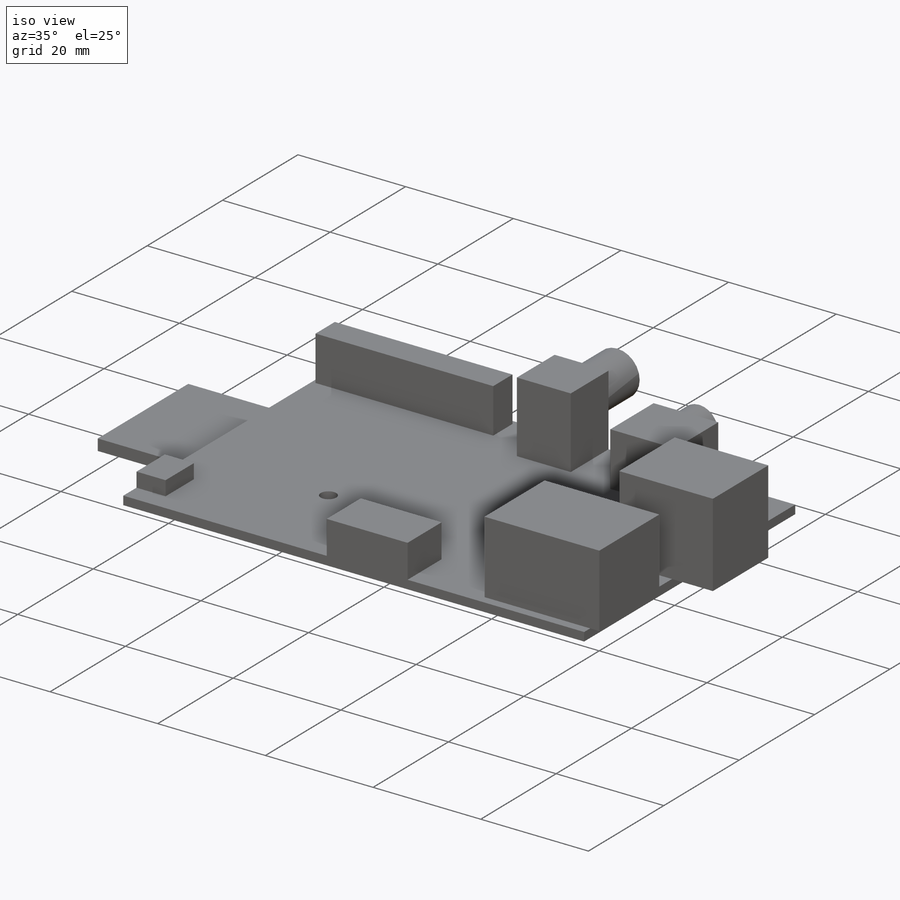
[diagram: iso view]
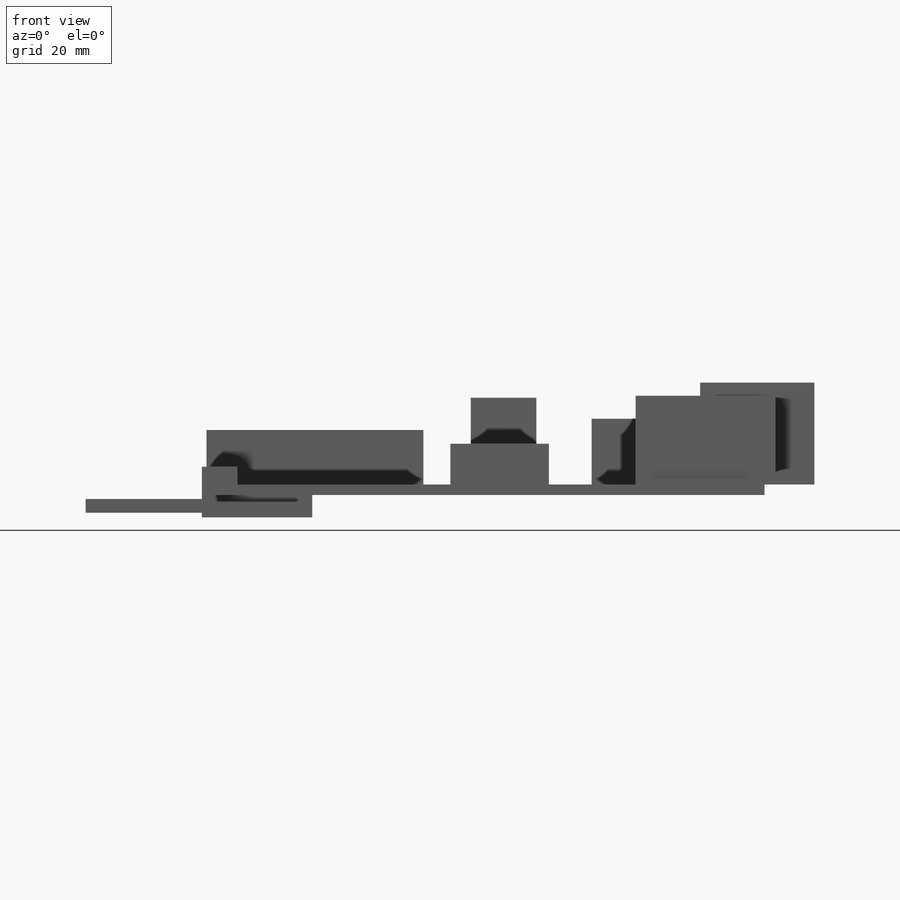
[diagram: front view]
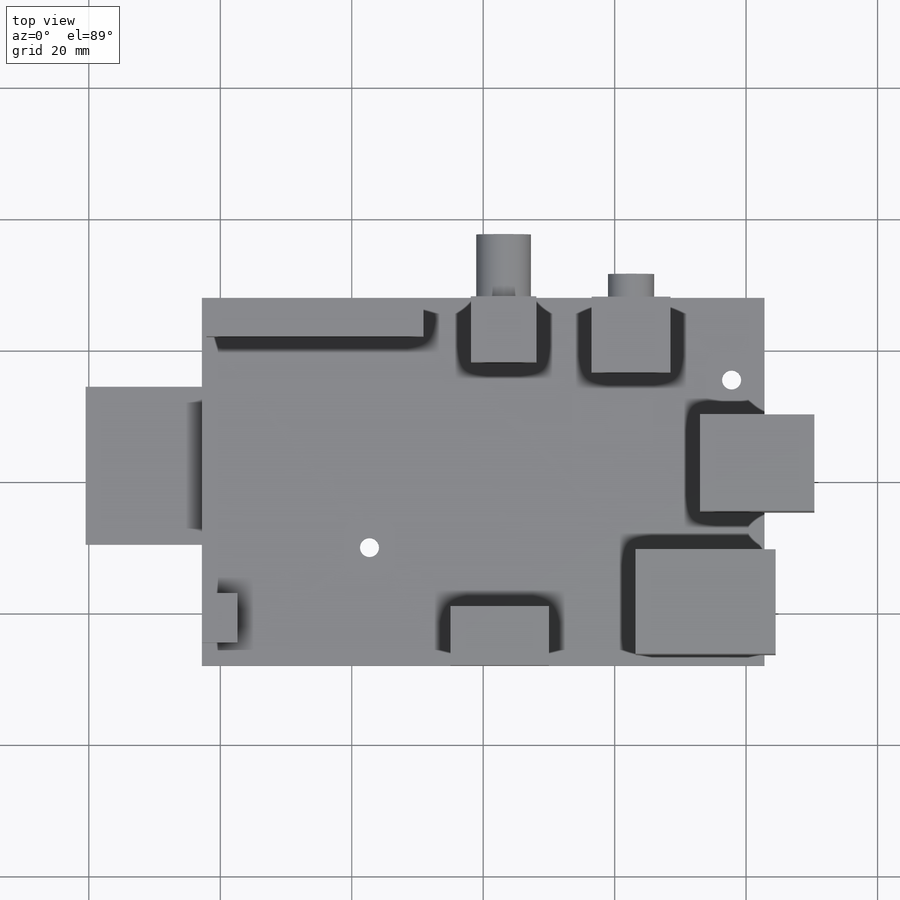
[diagram: top view]
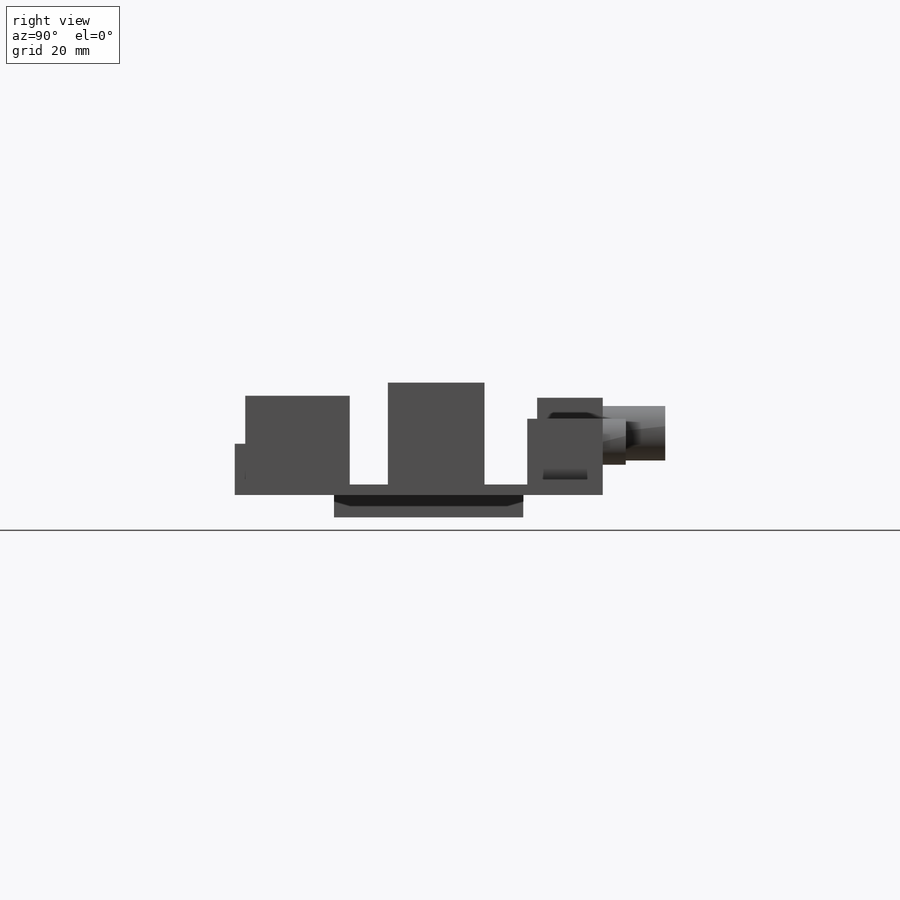
[diagram: right view]
SOLIDWORKS PART (.sldprt)
format: sldprt  version: not decoded by parser v0  size: 395,776 bytes
history: native  units: mm
features: sketch x13, extrude x12, material x1, cut_extrude x1 (+13 scaffold rows collapsed)
feature tree (40):
  scaffold x13  (default folders/planes/origin — collapsed)
  material  "Material <not specified>"
  sketch  "Sketch1"  dims[D1=85.6mm D2=56.0mm]
  extrude  "Boss-Extrude1"  Depth=1.6mm
  sketch  "Sketch2"  dims[D1=21.3mm D2=15.9mm D3=1.6mm D4=1.7mm]
  extrude  "Boss-Extrude2"  Depth=13.5mm
  sketch  "Sketch3"  dims[D1=14.7mm D2=17.4mm D3=18.0mm D4=7.6mm]
  extrude  "Boss-Extrude3"  Depth=15.5mm
  sketch  "Sketch4"  dims[D1=28.8mm D2=16.8mm D3=12.1mm]
  extrude  "Boss-Extrude4"  Depth=3.4mm
  sketch  "Sketch5"  dims[D1=24.0mm D2=13.5mm D3=0.7mm D4=2.1mm]
  extrude  "Boss-Extrude5"  Depth=17.7mm
  sketch  "Sketch6"  dims[D1=10.0mm D2=10.0mm D3=34.7mm]
  extrude  "Boss-Extrude6"  Depth=13.2mm
  sketch  "Sketch7"  dims[c1.D1=~4.688504mm c1.D2=8.3mm c2.D1=5.4mm]
  extrude  "Boss-Extrude7"  Depth=9.5mm
  sketch  "Sketch8"  dims[D1=12.0mm D2=11.5mm D3=14.3mm]
  extrude  "Boss-Extrude8"  Depth=10mm
  sketch  "Sketch9"  dims[D1=7.0mm]
  extrude  "Boss-Extrude9"  Depth=3.5mm
  sketch  "Sketch10"  dims[D1=33.0mm D2=5.1mm D3=0.7mm D4=0.9mm]
  extrude  "Boss-Extrude10"  Depth=8.3mm
  sketch  "Sketch11"  dims[D1=7.5mm D2=5.4mm D3=3.5mm]
  extrude  "Boss-Extrude11"  Depth=2.7mm
  sketch  "Sketch12"  dims[D1=15.0mm D2=9.0mm D3=32.8mm]
  extrude  "Boss-Extrude12"  Depth=6.2mm
  sketch  "Sketch13"  dims[D5=2.9mm D1=25.5mm D2=18.0mm D3=5.0mm D4=12.5mm]
  cut_extrude  "Cut-Extrude1"  [1 undecoded]
decode coverage: 25 of 26 modeling features carry decoded parameters
note: ~ marks probable driven/reference dimensions
note: 1 parameter value undecoded
note: suppression state not decoded; provenance and decode notes live in map.json
